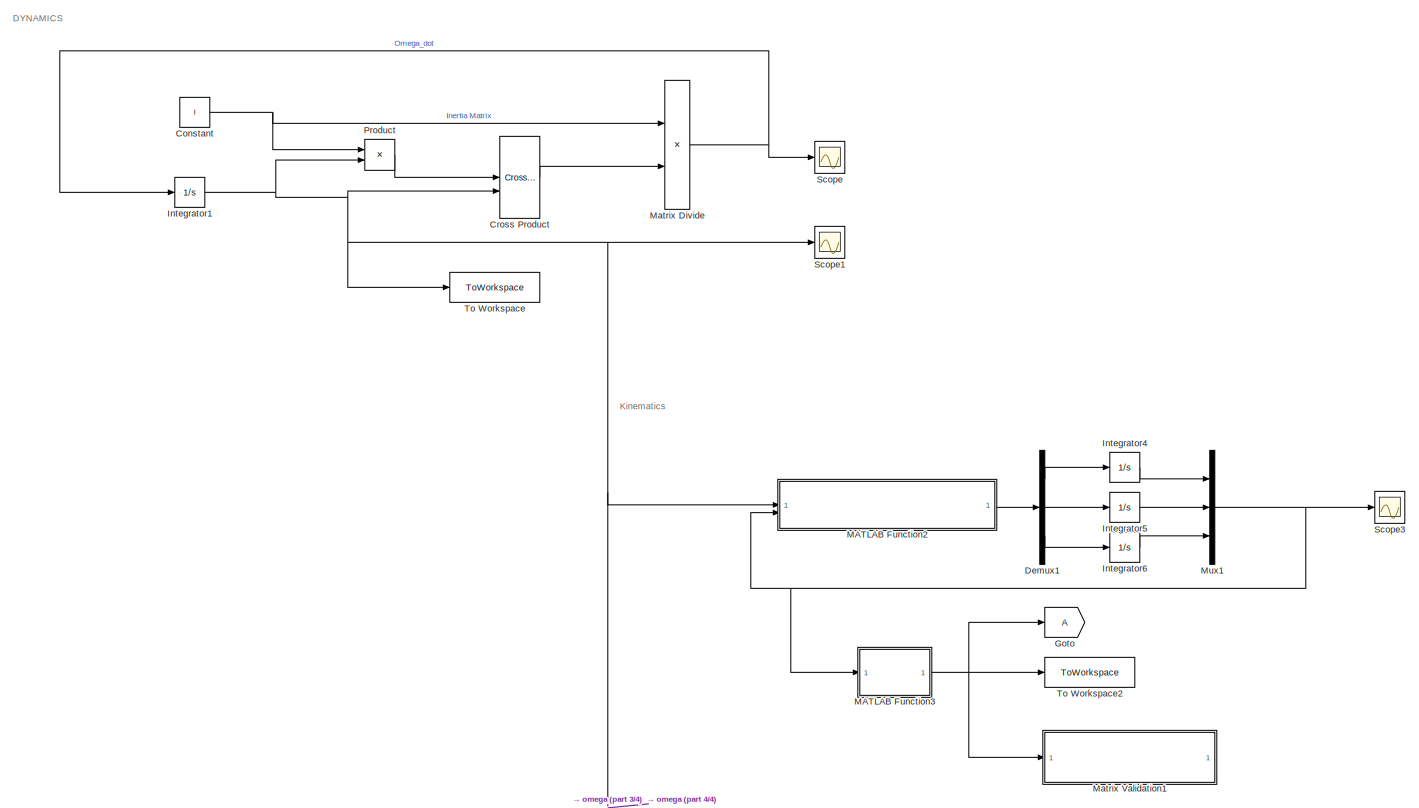
[diagram: root canvas - part 1/4, top left region]
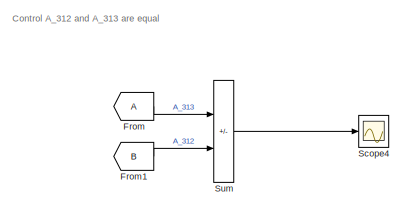
[diagram: root canvas - part 2/4, central region]
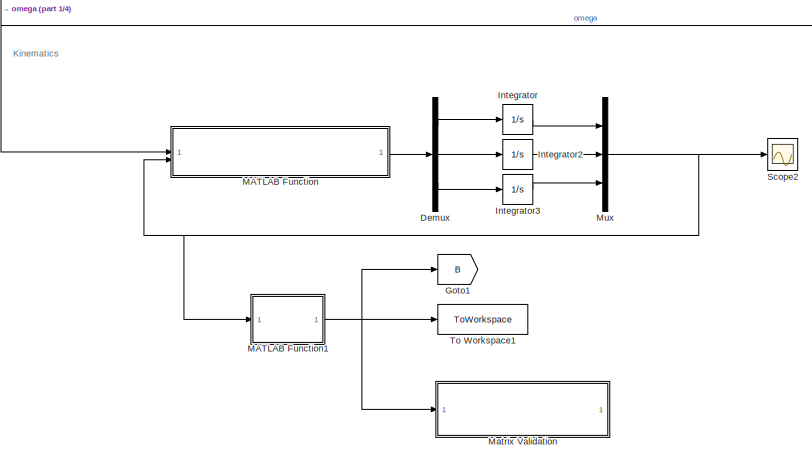
[diagram: root canvas - part 3/4, bottom center region]
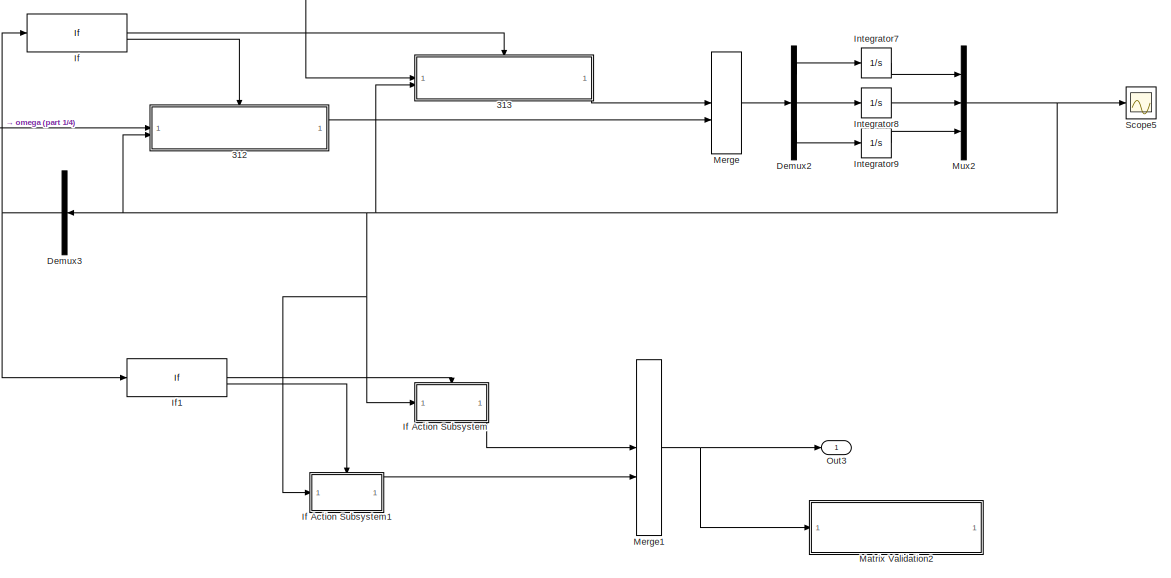
[diagram: root canvas - part 4/4, bottom right region]
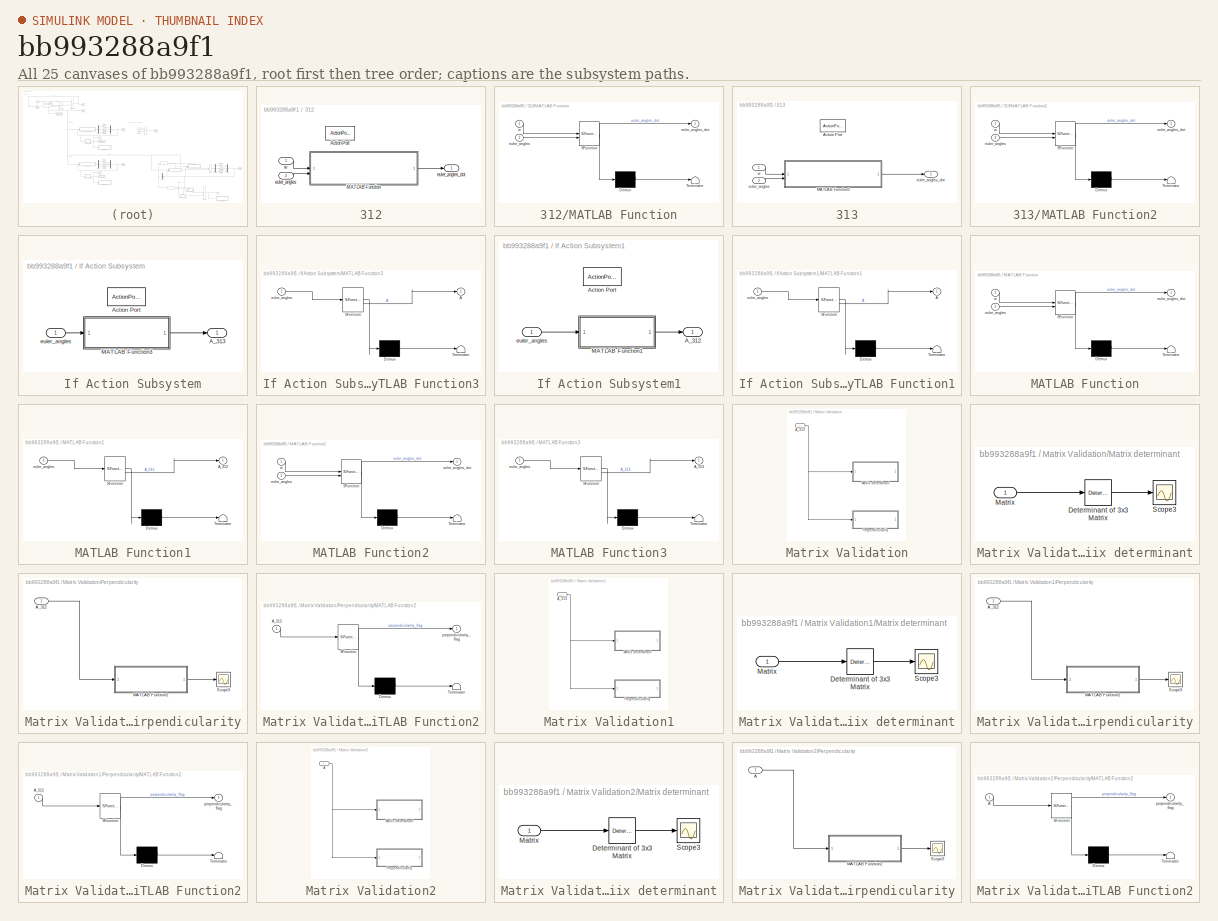
[diagram: thumbnail index - all 25 canvases of the model, root first then tree order]
MODEL slx_bb993288a9f1
KIND model
CONFIG AbsTol = auto
CONFIG EnableMultiTasking = off
CONFIG FixedStep = 0.1
CONFIG MaxStep = auto
CONFIG MinStep = auto
CONFIG RelTol = 1e-3
CONFIG SampleTimeConstraint = Unconstrained
CONFIG SolverName = ode4
CONFIG StartTime = 0.0
CONFIG StopTime = 100
BLOCK [SubSystem] 312
  TreatAsAtomicUnit = on
BLOCK [ActionPort] 312/Action Port
  ActionPortLabel = else
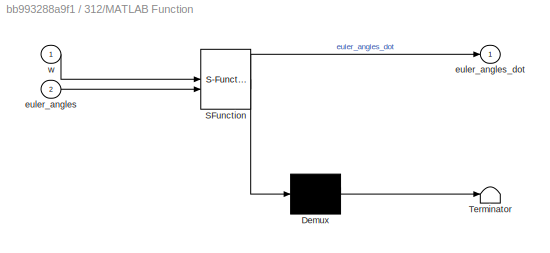
BLOCK [SubSystem] 312/MATLAB Function
  ErrorFcn = Stateflow.Translate.translate
  LibrarySourceBlock = simulink/User-Defined\nFunctions/MATLAB Function
  PermitHierarchicalResolution = ExplicitOnly
  SFBlockType = MATLAB Function
  TreatAsAtomicUnit = on
BLOCK [Demux] 312/MATLAB Function/ Demux 
  Outputs = 1
BLOCK [S-Function] 312/MATLAB Function/ SFunction 
  EnableBusSupport = on
  FunctionName = sf_sfun
  PortCounts = [2 2]
  SFcnIsStateOwnerBlock = off
  SFunctionDeploymentMode = off
  Tag = Stateflow S-Function 8
BLOCK [Terminator] 312/MATLAB Function/ Terminator 
BLOCK [Inport] 312/MATLAB Function/euler_angles
  Port = 2
BLOCK [Outport] 312/MATLAB Function/euler_angles_dot
BLOCK [Inport] 312/MATLAB Function/w
BLOCK [Inport] 312/euler_angles
  Port = 2
BLOCK [Outport] 312/euler_angles_dot
BLOCK [Inport] 312/w
BLOCK [SubSystem] 313
  TreatAsAtomicUnit = on
BLOCK [ActionPort] 313/Action Port
  ActionPortLabel = if(u1 < 1.58 & u1 >1.56)
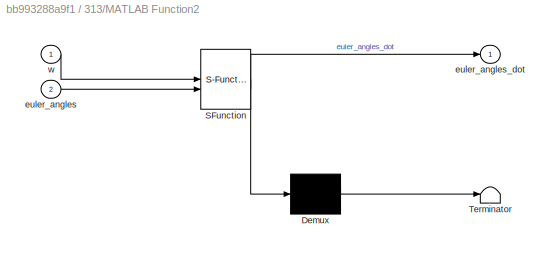
BLOCK [SubSystem] 313/MATLAB Function2
  ErrorFcn = Stateflow.Translate.translate
  LibrarySourceBlock = simulink/User-Defined\nFunctions/MATLAB Function
  PermitHierarchicalResolution = ExplicitOnly
  SFBlockType = MATLAB Function
  TreatAsAtomicUnit = on
BLOCK [Demux] 313/MATLAB Function2/ Demux 
  Outputs = 1
BLOCK [S-Function] 313/MATLAB Function2/ SFunction 
  EnableBusSupport = on
  FunctionName = sf_sfun
  PortCounts = [2 2]
  SFcnIsStateOwnerBlock = off
  SFunctionDeploymentMode = off
  Tag = Stateflow S-Function 7
BLOCK [Terminator] 313/MATLAB Function2/ Terminator 
BLOCK [Inport] 313/MATLAB Function2/euler_angles
  Port = 2
BLOCK [Outport] 313/MATLAB Function2/euler_angles_dot
BLOCK [Inport] 313/MATLAB Function2/w
BLOCK [Inport] 313/euler_angles
  Port = 2
BLOCK [Outport] 313/euler_angles_dot
BLOCK [Inport] 313/w
BLOCK [Constant] Constant
  Value = I
BLOCK [Reference] Cross Product  REF=matrix_library/Cross Product
  LibrarySourceBlock = simulink/Matrix\nOperations/Cross Product
  SourceBlock = matrix_library/Cross Product
  SourceType = CrossProduct
BLOCK [Demux] Demux
  Outputs = 3
BLOCK [Demux] Demux1
  Outputs = 3
BLOCK [Demux] Demux2
  Outputs = 3
BLOCK [Demux] Demux3
  NameLocation = top
  Outputs = 3
BLOCK [From] From
BLOCK [From] From1
  GotoTag = B
BLOCK [Goto] Goto
BLOCK [Goto] Goto1
  GotoTag = B
BLOCK [If] If
  IfExpression = u1 < 1.58 & u1 >1.56
BLOCK [SubSystem] If Action Subsystem
  TreatAsAtomicUnit = on
BLOCK [Outport] If Action Subsystem/A_313
BLOCK [ActionPort] If Action Subsystem/Action Port
  ActionPortLabel = if(u1 < 1.58 & u1 >1.56)
BLOCK [SubSystem] If Action Subsystem/MATLAB Function3
  ErrorFcn = Stateflow.Translate.translate
  LibrarySourceBlock = simulink/User-Defined\nFunctions/MATLAB Function
  PermitHierarchicalResolution = ExplicitOnly
  SFBlockType = MATLAB Function
  TreatAsAtomicUnit = on
BLOCK [Demux] If Action Subsystem/MATLAB Function3/ Demux 
  Outputs = 1
BLOCK [S-Function] If Action Subsystem/MATLAB Function3/ SFunction 
  EnableBusSupport = on
  FunctionName = sf_sfun
  PortCounts = [1 2]
  SFcnIsStateOwnerBlock = off
  SFunctionDeploymentMode = off
  Tag = Stateflow S-Function 9
BLOCK [Terminator] If Action Subsystem/MATLAB Function3/ Terminator 
BLOCK [Outport] If Action Subsystem/MATLAB Function3/A
BLOCK [Inport] If Action Subsystem/MATLAB Function3/euler_angles
BLOCK [Inport] If Action Subsystem/euler_angles
BLOCK [SubSystem] If Action Subsystem1
  TreatAsAtomicUnit = on
BLOCK [Outport] If Action Subsystem1/A_312
BLOCK [ActionPort] If Action Subsystem1/Action Port
  ActionPortLabel = else
BLOCK [SubSystem] If Action Subsystem1/MATLAB Function1
  ErrorFcn = Stateflow.Translate.translate
  LibrarySourceBlock = simulink/User-Defined\nFunctions/MATLAB Function
  PermitHierarchicalResolution = ExplicitOnly
  SFBlockType = MATLAB Function
  TreatAsAtomicUnit = on
BLOCK [Demux] If Action Subsystem1/MATLAB Function1/ Demux 
  Outputs = 1
BLOCK [S-Function] If Action Subsystem1/MATLAB Function1/ SFunction 
  EnableBusSupport = on
  FunctionName = sf_sfun
  PortCounts = [1 2]
  SFcnIsStateOwnerBlock = off
  SFunctionDeploymentMode = off
  Tag = Stateflow S-Function 10
BLOCK [Terminator] If Action Subsystem1/MATLAB Function1/ Terminator 
BLOCK [Outport] If Action Subsystem1/MATLAB Function1/A
BLOCK [Inport] If Action Subsystem1/MATLAB Function1/euler_angles
BLOCK [Inport] If Action Subsystem1/euler_angles
BLOCK [If] If1
  IfExpression = u1 < 1.58 & u1 >1.56
BLOCK [Integrator] Integrator
  InitialCondition = euler_angles_0(1)
  WrapState = on
  WrappedStateLowerValue = 0
  WrappedStateUpperValue = 2*pi
BLOCK [Integrator] Integrator1
  InitialCondition = w0
BLOCK [Integrator] Integrator2
  InitialCondition = euler_angles_0(2)
  WrapState = on
BLOCK [Integrator] Integrator3
  InitialCondition = euler_angles_0(3)
  WrapState = on
  WrappedStateLowerValue = 0
  WrappedStateUpperValue = 2*pi
BLOCK [Integrator] Integrator4
  InitialCondition = euler_angles_0(1)
  WrapState = on
  WrappedStateLowerValue = 0
  WrappedStateUpperValue = 2*pi
BLOCK [Integrator] Integrator5
  InitialCondition = euler_angles_0(2)
  WrapState = on
BLOCK [Integrator] Integrator6
  InitialCondition = euler_angles_0(3)
  WrapState = on
  WrappedStateLowerValue = 0
  WrappedStateUpperValue = 2*pi
BLOCK [Integrator] Integrator7
  InitialCondition = euler_angles_0(1)
  WrapState = on
  WrappedStateLowerValue = 0
  WrappedStateUpperValue = 2*pi
BLOCK [Integrator] Integrator8
  InitialCondition = euler_angles_0(2)
  WrapState = on
BLOCK [Integrator] Integrator9
  InitialCondition = euler_angles_0(3)
  WrapState = on
  WrappedStateLowerValue = 0
  WrappedStateUpperValue = 2*pi
BLOCK [SubSystem] MATLAB Function
  ErrorFcn = Stateflow.Translate.translate
  LibrarySourceBlock = simulink/User-Defined\nFunctions/MATLAB Function
  PermitHierarchicalResolution = ExplicitOnly
  SFBlockType = MATLAB Function
  TreatAsAtomicUnit = on
BLOCK [Demux] MATLAB Function/ Demux 
  Outputs = 1
BLOCK [S-Function] MATLAB Function/ SFunction 
  EnableBusSupport = on
  FunctionName = sf_sfun
  PortCounts = [2 2]
  SFcnIsStateOwnerBlock = off
  SFunctionDeploymentMode = off
  Tag = Stateflow S-Function 2
BLOCK [Terminator] MATLAB Function/ Terminator 
BLOCK [Inport] MATLAB Function/euler_angles
  Port = 2
BLOCK [Outport] MATLAB Function/euler_angles_dot
BLOCK [Inport] MATLAB Function/w
BLOCK [SubSystem] MATLAB Function1
  ErrorFcn = Stateflow.Translate.translate
  LibrarySourceBlock = simulink/User-Defined\nFunctions/MATLAB Function
  PermitHierarchicalResolution = ExplicitOnly
  SFBlockType = MATLAB Function
  TreatAsAtomicUnit = on
BLOCK [Demux] MATLAB Function1/ Demux 
  Outputs = 1
BLOCK [S-Function] MATLAB Function1/ SFunction 
  EnableBusSupport = on
  FunctionName = sf_sfun
  PortCounts = [1 2]
  SFcnIsStateOwnerBlock = off
  SFunctionDeploymentMode = off
  Tag = Stateflow S-Function 1
BLOCK [Terminator] MATLAB Function1/ Terminator 
BLOCK [Outport] MATLAB Function1/A_312
BLOCK [Inport] MATLAB Function1/euler_angles
BLOCK [SubSystem] MATLAB Function2
  ErrorFcn = Stateflow.Translate.translate
  LibrarySourceBlock = simulink/User-Defined\nFunctions/MATLAB Function
  PermitHierarchicalResolution = ExplicitOnly
  SFBlockType = MATLAB Function
  TreatAsAtomicUnit = on
BLOCK [Demux] MATLAB Function2/ Demux 
  Outputs = 1
BLOCK [S-Function] MATLAB Function2/ SFunction 
  EnableBusSupport = on
  FunctionName = sf_sfun
  PortCounts = [2 2]
  SFcnIsStateOwnerBlock = off
  SFunctionDeploymentMode = off
  Tag = Stateflow S-Function 4
BLOCK [Terminator] MATLAB Function2/ Terminator 
BLOCK [Inport] MATLAB Function2/euler_angles
  Port = 2
BLOCK [Outport] MATLAB Function2/euler_angles_dot
BLOCK [Inport] MATLAB Function2/w
BLOCK [SubSystem] MATLAB Function3
  ErrorFcn = Stateflow.Translate.translate
  LibrarySourceBlock = simulink/User-Defined\nFunctions/MATLAB Function
  PermitHierarchicalResolution = ExplicitOnly
  SFBlockType = MATLAB Function
  TreatAsAtomicUnit = on
BLOCK [Demux] MATLAB Function3/ Demux 
  Outputs = 1
BLOCK [S-Function] MATLAB Function3/ SFunction 
  EnableBusSupport = on
  FunctionName = sf_sfun
  PortCounts = [1 2]
  SFcnIsStateOwnerBlock = off
  SFunctionDeploymentMode = off
  Tag = Stateflow S-Function 5
BLOCK [Terminator] MATLAB Function3/ Terminator 
BLOCK [Outport] MATLAB Function3/A_313
BLOCK [Inport] MATLAB Function3/euler_angles
BLOCK [Product] Matrix Divide
  Inputs = /*
  Multiplication = Matrix(*)
BLOCK [SubSystem] Matrix Validation
BLOCK [Inport] Matrix Validation/A_312
BLOCK [SubSystem] Matrix Validation/Matrix determinant
BLOCK [Reference] Matrix Validation/Matrix determinant/Determinant of 3x3 Matrix  REF=sharedutil/Determinant of
3x3 Matrix
  LibrarySourceBlock = aerolibutil/Determinant of\n3x3 Matrix
  SourceBlock = sharedutil/Determinant of\n3x3 Matrix
  SourceType = Determinant of 3x3 Matrix
BLOCK [Inport] Matrix Validation/Matrix determinant/Matrix
BLOCK [Scope] Matrix Validation/Matrix determinant/Scope3
  Floating = off
  NumInputPorts = 1
  ScopeSpecificationString = Simulink.scopes.TimeScopeBlockCfg('CurrentConfiguration', extmgr.ConfigurationSet(extmgr.Configuration('Core','General UI',true),extmgr.Configuration('Core','Source UI',true),extmgr.Configuration('Sources','WiredSimulink',true,'DataLoggingVariableName','ScopeData1'),extmgr.Configuration('Visuals','Time Domain',true,'SerializedDisplays',{struct('MinYLimReal','0.999928','MaxYLimReal','1.000021','YLa...<+1438ch>
BLOCK [SubSystem] Matrix Validation/Perpendicularity
BLOCK [Inport] Matrix Validation/Perpendicularity/A_312
BLOCK [SubSystem] Matrix Validation/Perpendicularity/MATLAB Function2
  ErrorFcn = Stateflow.Translate.translate
  LibrarySourceBlock = simulink/User-Defined\nFunctions/MATLAB Function
  PermitHierarchicalResolution = ExplicitOnly
  SFBlockType = MATLAB Function
  TreatAsAtomicUnit = on
BLOCK [Demux] Matrix Validation/Perpendicularity/MATLAB Function2/ Demux 
  Outputs = 1
BLOCK [S-Function] Matrix Validation/Perpendicularity/MATLAB Function2/ SFunction 
  EnableBusSupport = on
  FunctionName = sf_sfun
  PortCounts = [1 2]
  SFcnIsStateOwnerBlock = off
  SFunctionDeploymentMode = off
  Tag = Stateflow S-Function 3
BLOCK [Terminator] Matrix Validation/Perpendicularity/MATLAB Function2/ Terminator 
BLOCK [Inport] Matrix Validation/Perpendicularity/MATLAB Function2/A_312
BLOCK [Outport] Matrix Validation/Perpendicularity/MATLAB Function2/perpendicularity_flag
BLOCK [Scope] Matrix Validation/Perpendicularity/Scope3
  Floating = off
  NumInputPorts = 1
  ScopeSpecificationString = Simulink.scopes.TimeScopeBlockCfg('CurrentConfiguration', extmgr.ConfigurationSet(extmgr.Configuration('Core','General UI',true),extmgr.Configuration('Core','Source UI',true),extmgr.Configuration('Sources','WiredSimulink',true,'DataLoggingVariableName','ScopeData2'),extmgr.Configuration('Visuals','Time Domain',true,'SerializedDisplays',{struct('MinYLimReal','-0.00000000000000022','MaxYLimReal','0....<+1515ch>
BLOCK [SubSystem] Matrix Validation1
BLOCK [Inport] Matrix Validation1/A_313
BLOCK [SubSystem] Matrix Validation1/Matrix determinant
BLOCK [Reference] Matrix Validation1/Matrix determinant/Determinant of 3x3 Matrix  REF=sharedutil/Determinant of
3x3 Matrix
  LibrarySourceBlock = aerolibutil/Determinant of\n3x3 Matrix
  SourceBlock = sharedutil/Determinant of\n3x3 Matrix
  SourceType = Determinant of 3x3 Matrix
BLOCK [Inport] Matrix Validation1/Matrix determinant/Matrix
BLOCK [Scope] Matrix Validation1/Matrix determinant/Scope3
  Floating = off
  NumInputPorts = 1
  ScopeSpecificationString = Simulink.scopes.TimeScopeBlockCfg('CurrentConfiguration', extmgr.ConfigurationSet(extmgr.Configuration('Core','General UI',true),extmgr.Configuration('Core','Source UI',true),extmgr.Configuration('Sources','WiredSimulink',true,'DataLoggingVariableName','ScopeData1'),extmgr.Configuration('Visuals','Time Domain',true,'SerializedDisplays',{struct('MinYLimReal','0.14186','MaxYLimReal','1.23735','YLabe...<+1430ch>
BLOCK [SubSystem] Matrix Validation1/Perpendicularity
BLOCK [Inport] Matrix Validation1/Perpendicularity/A_312
BLOCK [SubSystem] Matrix Validation1/Perpendicularity/MATLAB Function2
  ErrorFcn = Stateflow.Translate.translate
  LibrarySourceBlock = simulink/User-Defined\nFunctions/MATLAB Function
  PermitHierarchicalResolution = ExplicitOnly
  SFBlockType = MATLAB Function
  TreatAsAtomicUnit = on
BLOCK [Demux] Matrix Validation1/Perpendicularity/MATLAB Function2/ Demux 
  Outputs = 1
BLOCK [S-Function] Matrix Validation1/Perpendicularity/MATLAB Function2/ SFunction 
  EnableBusSupport = on
  FunctionName = sf_sfun
  PortCounts = [1 2]
  SFcnIsStateOwnerBlock = off
  SFunctionDeploymentMode = off
  Tag = Stateflow S-Function 6
BLOCK [Terminator] Matrix Validation1/Perpendicularity/MATLAB Function2/ Terminator 
BLOCK [Inport] Matrix Validation1/Perpendicularity/MATLAB Function2/A_312
BLOCK [Outport] Matrix Validation1/Perpendicularity/MATLAB Function2/perpendicularity_flag
BLOCK [Scope] Matrix Validation1/Perpendicularity/Scope3
  Floating = off
  NumInputPorts = 1
  ScopeSpecificationString = Simulink.scopes.TimeScopeBlockCfg('CurrentConfiguration', extmgr.ConfigurationSet(extmgr.Configuration('Core','General UI',true),extmgr.Configuration('Core','Source UI',true),extmgr.Configuration('Sources','WiredSimulink',true,'DataLoggingVariableName','ScopeData2'),extmgr.Configuration('Visuals','Time Domain',true,'SerializedDisplays',{struct('MinYLimReal','-0.00000000000000019','MaxYLimReal','0....<+1515ch>
BLOCK [SubSystem] Matrix Validation2
BLOCK [Inport] Matrix Validation2/A
BLOCK [SubSystem] Matrix Validation2/Matrix determinant
BLOCK [Reference] Matrix Validation2/Matrix determinant/Determinant of 3x3 Matrix  REF=sharedutil/Determinant of
3x3 Matrix
  LibrarySourceBlock = aerolibutil/Determinant of\n3x3 Matrix
  SourceBlock = sharedutil/Determinant of\n3x3 Matrix
  SourceType = Determinant of 3x3 Matrix
BLOCK [Inport] Matrix Validation2/Matrix determinant/Matrix
BLOCK [Scope] Matrix Validation2/Matrix determinant/Scope3
  Floating = off
  NumInputPorts = 1
  ScopeSpecificationString = Simulink.scopes.TimeScopeBlockCfg('CurrentConfiguration', extmgr.ConfigurationSet(extmgr.Configuration('Core','General UI',true),extmgr.Configuration('Core','Source UI',true),extmgr.Configuration('Sources','WiredSimulink',true,'DataLoggingVariableName','ScopeData1'),extmgr.Configuration('Visuals','Time Domain',true,'SerializedDisplays',{struct('MinYLimReal','0.999928','MaxYLimReal','1.000021','YLa...<+1438ch>
BLOCK [SubSystem] Matrix Validation2/Perpendicularity
BLOCK [Inport] Matrix Validation2/Perpendicularity/A
BLOCK [SubSystem] Matrix Validation2/Perpendicularity/MATLAB Function2
  ErrorFcn = Stateflow.Translate.translate
  LibrarySourceBlock = simulink/User-Defined\nFunctions/MATLAB Function
  PermitHierarchicalResolution = ExplicitOnly
  SFBlockType = MATLAB Function
  TreatAsAtomicUnit = on
BLOCK [Demux] Matrix Validation2/Perpendicularity/MATLAB Function2/ Demux 
  Outputs = 1
BLOCK [S-Function] Matrix Validation2/Perpendicularity/MATLAB Function2/ SFunction 
  EnableBusSupport = on
  FunctionName = sf_sfun
  PortCounts = [1 2]
  SFcnIsStateOwnerBlock = off
  SFunctionDeploymentMode = off
  Tag = Stateflow S-Function 11
BLOCK [Terminator] Matrix Validation2/Perpendicularity/MATLAB Function2/ Terminator 
BLOCK [Inport] Matrix Validation2/Perpendicularity/MATLAB Function2/A
BLOCK [Outport] Matrix Validation2/Perpendicularity/MATLAB Function2/perpendicularity_flag
BLOCK [Scope] Matrix Validation2/Perpendicularity/Scope3
  Floating = off
  NumInputPorts = 1
  ScopeSpecificationString = Simulink.scopes.TimeScopeBlockCfg('CurrentConfiguration', extmgr.ConfigurationSet(extmgr.Configuration('Core','General UI',true),extmgr.Configuration('Core','Source UI',true),extmgr.Configuration('Sources','WiredSimulink',true,'DataLoggingVariableName','ScopeData2'),extmgr.Configuration('Visuals','Time Domain',true,'SerializedDisplays',{struct('MinYLimReal','-0.00000000000000022','MaxYLimReal','0....<+1515ch>
BLOCK [Merge] Merge
BLOCK [Merge] Merge1
BLOCK [Mux] Mux
  DisplayOption = bar
  Inputs = 3
BLOCK [Mux] Mux1
  DisplayOption = bar
  Inputs = 3
BLOCK [Mux] Mux2
  DisplayOption = bar
  Inputs = 3
BLOCK [Outport] Out3
BLOCK [Product] Product
  Multiplication = Matrix(*)
BLOCK [Scope] Scope
  Floating = off
  NumInputPorts = 1
  ScopeSpecificationString = Simulink.scopes.TimeScopeBlockCfg('CurrentConfiguration', extmgr.ConfigurationSet(extmgr.Configuration('Core','General UI',true),extmgr.Configuration('Core','Source UI',true),extmgr.Configuration('Sources','WiredSimulink',true),extmgr.Configuration('Visuals','Time Domain',true,'SerializedDisplays',{struct('MinYLimReal','-0.42457','MaxYLimReal','0.42457','YLabelReal','','MinYLimMag','0.00000','MaxY...<+1359ch>
BLOCK [Scope] Scope1
  Floating = off
  NumInputPorts = 1
  ScopeSpecificationString = Simulink.scopes.TimeScopeBlockCfg('CurrentConfiguration', extmgr.ConfigurationSet(extmgr.Configuration('Core','General UI',true),extmgr.Configuration('Core','Source UI',true),extmgr.Configuration('Sources','WiredSimulink',true,'DataLoggingVariableName','ScopeData1'),extmgr.Configuration('Visuals','Time Domain',true,'SerializedDisplays',{struct('MinYLimReal','-1.01319','MaxYLimReal','1.01319','YLab...<+1417ch>
BLOCK [Scope] Scope2
  Floating = off
  NumInputPorts = 1
  ScopeSpecificationString = Simulink.scopes.TimeScopeBlockCfg('CurrentConfiguration', extmgr.ConfigurationSet(extmgr.Configuration('Core','General UI',true),extmgr.Configuration('Core','Source UI',true),extmgr.Configuration('Sources','WiredSimulink',true,'DataLoggingVariableName','ScopeData1'),extmgr.Configuration('Visuals','Time Domain',true,'SerializedDisplays',{struct('MinYLimReal','-2.05057','MaxYLimReal','7.20894','YLab...<+1474ch>
BLOCK [Scope] Scope3
  Floating = off
  NumInputPorts = 1
  ScopeSpecificationString = Simulink.scopes.TimeScopeBlockCfg('CurrentConfiguration', extmgr.ConfigurationSet(extmgr.Configuration('Core','General UI',true),extmgr.Configuration('Core','Source UI',true),extmgr.Configuration('Sources','WiredSimulink',true,'DataLoggingVariableName','ScopeData3'),extmgr.Configuration('Visuals','Time Domain',true,'SerializedDisplays',{struct('MinYLimReal','-2.05057','MaxYLimReal','7.20894','YLab...<+1473ch>
BLOCK [Scope] Scope4
  Floating = off
  NumInputPorts = 1
  ScopeSpecificationString = Simulink.scopes.TimeScopeBlockCfg('CurrentConfiguration', extmgr.ConfigurationSet(extmgr.Configuration('Core','General UI',true),extmgr.Configuration('Core','Source UI',true),extmgr.Configuration('Sources','WiredSimulink',true,'DataLoggingVariableName','ScopeData4'),extmgr.Configuration('Visuals','Time Domain',true,'SerializedDisplays',{struct('MinYLimReal','-1.56379','MaxYLimReal','1.56306','YLab...<+1472ch>
BLOCK [Scope] Scope5
  Floating = off
  NumInputPorts = 1
  ScopeSpecificationString = Simulink.scopes.TimeScopeBlockCfg('CurrentConfiguration', extmgr.ConfigurationSet(extmgr.Configuration('Core','General UI',true),extmgr.Configuration('Core','Source UI',true),extmgr.Configuration('Sources','WiredSimulink',true,'DataLoggingVariableName','ScopeData5'),extmgr.Configuration('Visuals','Time Domain',true,'SerializedDisplays',{struct('MinYLimReal','-2.05057','MaxYLimReal','7.20894','YLab...<+1475ch>
BLOCK [Sum] Sum
  IconShape = rectangular
  Inputs = +-
BLOCK [ToWorkspace] To Workspace
  FixptAsFi = on
  MaxDataPoints = inf
  SampleTime = -1
  SaveFormat = Timeseries
  VariableName = omega
BLOCK [ToWorkspace] To Workspace1
  FixptAsFi = on
  MaxDataPoints = inf
  SampleTime = -1
  SaveFormat = Timeseries
  VariableName = A_312
BLOCK [ToWorkspace] To Workspace2
  FixptAsFi = on
  MaxDataPoints = inf
  SampleTime = -1
  SaveFormat = Timeseries
  VariableName = A_313
ANNOTATION (root): Control A_312 and A_313 are equal
ANNOTATION (root): DYNAMICS
ANNOTATION (root): Kinematics
LINE 312/MATLAB Function:1 -> 312/euler_angles_dot:1
LINE 312/euler_angles:1 -> 312/MATLAB Function:2
LINE 312/w:1 -> 312/MATLAB Function:1
LINE 312:1 -> Merge:2
LINE 313/MATLAB Function2:1 -> 313/euler_angles_dot:1
LINE 313/euler_angles:1 -> 313/MATLAB Function2:2
LINE 313/w:1 -> 313/MATLAB Function2:1
LINE 313:1 -> Merge:1
NET Constant:1 -> Matrix Divide:1, Product:1
LINE Cross Product:1 -> Matrix Divide:2
LINE Demux1:1 -> Integrator4:1
LINE Demux1:2 -> Integrator5:1
LINE Demux1:3 -> Integrator6:1
LINE Demux2:1 -> Integrator7:1
LINE Demux2:2 -> Integrator8:1
LINE Demux2:3 -> Integrator9:1
NET Demux3:2 -> If1:1, If:1
LINE Demux:1 -> Integrator:1
LINE Demux:2 -> Integrator2:1
LINE Demux:3 -> Integrator3:1
LINE From1:1 -> Sum:2
LINE From:1 -> Sum:1
LINE If Action Subsystem/MATLAB Function3:1 -> If Action Subsystem/A_313:1
LINE If Action Subsystem/euler_angles:1 -> If Action Subsystem/MATLAB Function3:1
LINE If Action Subsystem1/MATLAB Function1:1 -> If Action Subsystem1/A_312:1
LINE If Action Subsystem1/euler_angles:1 -> If Action Subsystem1/MATLAB Function1:1
LINE If Action Subsystem1:1 -> Merge1:2
LINE If Action Subsystem:1 -> Merge1:1
LINE If1:1 -> If Action Subsystem:ifaction
LINE If1:2 -> If Action Subsystem1:ifaction
LINE If:1 -> 313:ifaction
LINE If:2 -> 312:ifaction
NET Integrator1:1 -> 312:1, 313:1, Cross Product:2, MATLAB Function2:1, MATLAB Function:1, Product:2, Scope1:1, To Workspace:1
LINE Integrator2:1 -> Mux:2
LINE Integrator3:1 -> Mux:3
LINE Integrator4:1 -> Mux1:1
LINE Integrator5:1 -> Mux1:2
LINE Integrator6:1 -> Mux1:3
LINE Integrator7:1 -> Mux2:1
LINE Integrator8:1 -> Mux2:2
LINE Integrator9:1 -> Mux2:3
LINE Integrator:1 -> Mux:1
NET MATLAB Function1:1 -> Goto1:1, Matrix Validation:1, To Workspace1:1
LINE MATLAB Function2:1 -> Demux1:1
NET MATLAB Function3:1 -> Goto:1, Matrix Validation1:1, To Workspace2:1
LINE MATLAB Function:1 -> Demux:1
NET Matrix Divide:1 -> Integrator1:1, Scope:1
NET Matrix Validation/A_312:1 -> Matrix Validation/Matrix determinant:1, Matrix Validation/Perpendicularity:1
LINE Matrix Validation/Matrix determinant/Determinant of 3x3 Matrix:1 -> Matrix Validation/Matrix determinant/Scope3:1
LINE Matrix Validation/Matrix determinant/Matrix:1 -> Matrix Validation/Matrix determinant/Determinant of 3x3 Matrix:1
LINE Matrix Validation/Perpendicularity/A_312:1 -> Matrix Validation/Perpendicularity/MATLAB Function2:1
LINE Matrix Validation/Perpendicularity/MATLAB Function2:1 -> Matrix Validation/Perpendicularity/Scope3:1
NET Matrix Validation1/A_313:1 -> Matrix Validation1/Matrix determinant:1, Matrix Validation1/Perpendicularity:1
LINE Matrix Validation1/Matrix determinant/Determinant of 3x3 Matrix:1 -> Matrix Validation1/Matrix determinant/Scope3:1
LINE Matrix Validation1/Matrix determinant/Matrix:1 -> Matrix Validation1/Matrix determinant/Determinant of 3x3 Matrix:1
LINE Matrix Validation1/Perpendicularity/A_312:1 -> Matrix Validation1/Perpendicularity/MATLAB Function2:1
LINE Matrix Validation1/Perpendicularity/MATLAB Function2:1 -> Matrix Validation1/Perpendicularity/Scope3:1
NET Matrix Validation2/A:1 -> Matrix Validation2/Matrix determinant:1, Matrix Validation2/Perpendicularity:1
LINE Matrix Validation2/Matrix determinant/Determinant of 3x3 Matrix:1 -> Matrix Validation2/Matrix determinant/Scope3:1
LINE Matrix Validation2/Matrix determinant/Matrix:1 -> Matrix Validation2/Matrix determinant/Determinant of 3x3 Matrix:1
LINE Matrix Validation2/Perpendicularity/A:1 -> Matrix Validation2/Perpendicularity/MATLAB Function2:1
LINE Matrix Validation2/Perpendicularity/MATLAB Function2:1 -> Matrix Validation2/Perpendicularity/Scope3:1
NET Merge1:1 -> Matrix Validation2:1, Out3:1
LINE Merge:1 -> Demux2:1
NET Mux1:1 -> MATLAB Function2:2, MATLAB Function3:1, Scope3:1
NET Mux2:1 -> 312:2, 313:2, Demux3:1, If Action Subsystem1:1, If Action Subsystem:1, Scope5:1
NET Mux:1 -> MATLAB Function1:1, MATLAB Function:2, Scope2:1
LINE Product:1 -> Cross Product:1
LINE Sum:1 -> Scope4:1
note: NET lines group one-source signal fan-out (src -> all destinations, sorted); 1:1 wires keep LINE
CHART MATLAB Function1 states=1 transitions=1
  STATE_LABEL 'eML_blk_kernel()'
  STATE_LABEL 'SCRIPT:\nfunction A_312 = DCM_312(euler_angles)\n\n% Define data\n    phi         = euler_angles(1);\n    theta       = euler_angles(2);\n    psi         = euler_angles(3);\n\nA_312=[ cos(psi)*cos(phi) - sin(psi)*sin(phi)*sin(theta)     , cos(psi)*sin(phi) + sin(psi)*cos(phi)*sin(theta)  , -sin(psi)*cos(theta)  ;\n        -sin(phi)*cos(theta)                                 , cos(phi)*cos(theta)           ...<+190ch>'
CHART MATLAB Function states=1 transitions=1
  STATE_LABEL 'eML_blk_kernel()'
  STATE_LABEL "SCRIPT:\nfunction euler_angles_dot = Euler_angles_312(w, euler_angles)\n    \n% Define data\n    phi         = euler_angles(1);\n    theta       = euler_angles(2);\n    psi         = euler_angles(3);\n\n% Calculate derivatives of Euler's angles 312\n     phi_dot     = (w(3)*cos(psi) - w(1)*sin(psi))/cos(theta);\n     theta_dot   = w(1)*cos(psi) + w(3)*sin(psi);\n     psi_dot     = w(2) - (w(3)*cos(psi) - w(1...<+350ch>"
CHART Matrix Validation/Perpendicularity/MATLAB Function2 states=1 transitions=1
  STATE_LABEL 'eML_blk_kernel()'
  STATE_LABEL 'SCRIPT:\nfunction perpendicularity_flag = fcn(A_312)\n    \n\nperpendicularity_flag =zeros(3,1);\n\n    x   = A_312(1,:);\n    y   = A_312(2,:);\n    z   = A_312(3,:);\n\n    perpendicularity_flag(1)=dot(x,y);\n    perpendicularity_flag(2)=dot(x,z);\n    perpendicularity_flag(1)=dot(z,y);\n\nend\n\n'
CHART MATLAB Function2 states=1 transitions=1
  STATE_LABEL 'eML_blk_kernel()'
  STATE_LABEL "SCRIPT:\nfunction euler_angles_dot = Euler_angles_313(w, euler_angles)\n    \n% Define data\n    phi         = euler_angles(1);\n    theta       = euler_angles(2);\n    psi         = euler_angles(3);\n\n    \n% Calculate derivatives of Euler's angles 313\n     phi_dot     = (w(1)*sin(psi) + w(2)*cos(psi))/sin(theta);\n     theta_dot   = w(1)*cos(psi) - w(2)*sin(psi);\n     psi_dot     = w(3) - (w(1)*sin(psi) ...<+101ch>"
CHART MATLAB Function3 states=1 transitions=1
  STATE_LABEL 'eML_blk_kernel()'
  STATE_LABEL 'SCRIPT:\nfunction A_313 = DCM_313(euler_angles)\n\n% Define data\n    phi         = euler_angles(1);\n    theta       = euler_angles(2);\n    psi         = euler_angles(3);\n\nA_313=[ cos(psi)*cos(phi) - sin(psi)*sin(phi)*cos(theta)     , cos(psi)*sin(phi) + sin(psi)*cos(phi)*cos(theta)     , sin(psi)*sin(theta)  ;\n        - sin(psi)*cos(phi) - cos(psi)*sin(phi)*cos(theta)   , - sin(psi)*sin(phi) + cos(ps...<+195ch>'
CHART Matrix Validation1/Perpendicularity/MATLAB Function2 states=1 transitions=1
  STATE_LABEL 'eML_blk_kernel()'
  STATE_LABEL 'SCRIPT:\nfunction perpendicularity_flag = fcn(A_312)\n    \n\nperpendicularity_flag =zeros(3,1);\n\n    x   = A_312(1,:);\n    y   = A_312(2,:);\n    z   = A_312(3,:);\n\n    perpendicularity_flag(1)=dot(x,y);\n    perpendicularity_flag(2)=dot(x,z);\n    perpendicularity_flag(1)=dot(z,y);\n\nend\n\n'
CHART 313/MATLAB Function2 states=1 transitions=1
  STATE_LABEL 'eML_blk_kernel()'
  STATE_LABEL "SCRIPT:\nfunction euler_angles_dot = Euler_angles_313(w, euler_angles)\n    \n% Define data\n    phi         = euler_angles(1);\n    theta       = euler_angles(2);\n    psi         = euler_angles(3);\n\n    \n% Calculate derivatives of Euler's angles 313\n     phi_dot     = (w(1)*sin(psi) + w(2)*cos(psi))/sin(theta);\n     theta_dot   = w(1)*cos(psi) - w(2)*sin(psi);\n     psi_dot     = w(3) - (w(1)*sin(psi) ...<+101ch>"
CHART 312/MATLAB Function states=1 transitions=1
  STATE_LABEL 'eML_blk_kernel()'
  STATE_LABEL "SCRIPT:\nfunction euler_angles_dot = Euler_angles_312(w, euler_angles)\n    \n% Define data\n    phi         = euler_angles(1);\n    theta       = euler_angles(2);\n    psi         = euler_angles(3);\n\n% Calculate derivatives of Euler's angles 312\n     phi_dot     = (w(3)*cos(psi) - w(1)*sin(psi))/cos(theta);\n     theta_dot   = w(1)*cos(psi) + w(3)*sin(psi);\n     psi_dot     = w(2) - (w(3)*cos(psi) - w(1...<+350ch>"
CHART If Action
Subsystem/MATLAB Function3 states=1 transitions=1
  STATE_LABEL 'eML_blk_kernel()'
  STATE_LABEL 'SCRIPT:\nfunction A = DCM_313(euler_angles)\n\n% Define data\n    phi         = euler_angles(1);\n    theta       = euler_angles(2);\n    psi         = euler_angles(3);\n\nA=[ cos(psi)*cos(phi) + sin(psi)*sin(phi)*cos(theta)     , cos(psi)*sin(phi) + sin(psi)*cos(phi)*cos(theta)     , sin(psi)*sin(theta)  ;\n        - sin(psi)*cos(phi) - cos(psi)*sin(phi)*cos(theta)   , - sin(psi)*sin(phi) + cos(psi)*cos(p...<+188ch>'
CHART If Action
Subsystem1/MATLAB Function1 states=1 transitions=1
  STATE_LABEL 'eML_blk_kernel()'
  STATE_LABEL 'SCRIPT:\nfunction A = DCM_312(euler_angles)\n\n% Define data\n    phi         = euler_angles(1);\n    theta       = euler_angles(2);\n    psi         = euler_angles(3);\n\nA=[ cos(psi)*cos(phi) - sin(psi)*sin(phi)*sin(theta)     , cos(psi)*sin(phi) + sin(psi)*cos(phi)*sin(theta)  , -sin(psi)*cos(theta)  ;\n        -sin(phi)*cos(theta)                                 , cos(phi)*cos(theta)                   ...<+182ch>'
CHART Matrix Validation2/Perpendicularity/MATLAB Function2 states=1 transitions=1
  STATE_LABEL 'eML_blk_kernel()'
  STATE_LABEL 'SCRIPT:\nfunction perpendicularity_flag = fcn(A)\n    \n\nperpendicularity_flag =zeros(3,1);\n\n    x   = A(1,:);\n    y   = A(2,:);\n    z   = A(3,:);\n\n    perpendicularity_flag(1)=dot(x,y);\n    perpendicularity_flag(2)=dot(x,z);\n    perpendicularity_flag(1)=dot(z,y);\n\nend\n\n'
CHART  states=0 transitions=0
CHART  states=0 transitions=0
CHART  states=0 transitions=0
CHART  states=0 transitions=0
CHART  states=0 transitions=0
CHART  states=0 transitions=0
CHART  states=0 transitions=0
CHART  states=0 transitions=0
CHART  states=0 transitions=0
CHART  states=0 transitions=0
CHART  states=0 transitions=0
